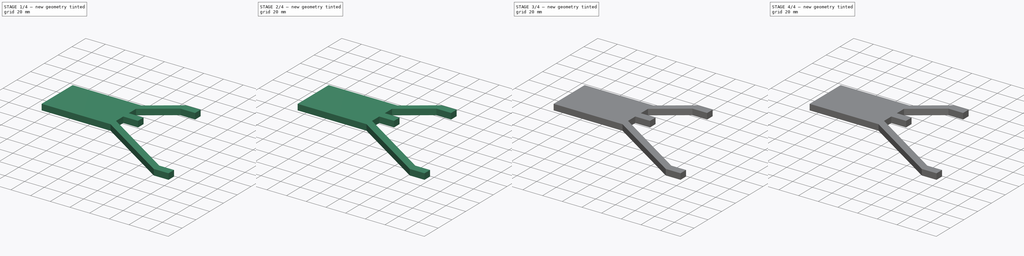
[diagram: build sequence overview — one tinted view per stage of 4, left to right]
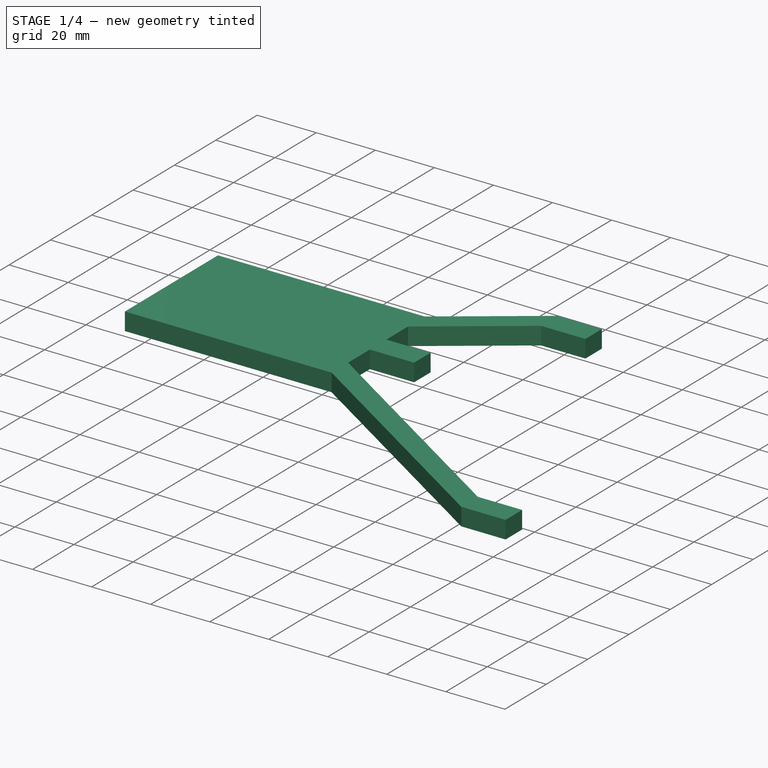
[diagram: stage 1 of 4 — iso view after this stage's code; geometry added in this stage tinted green]
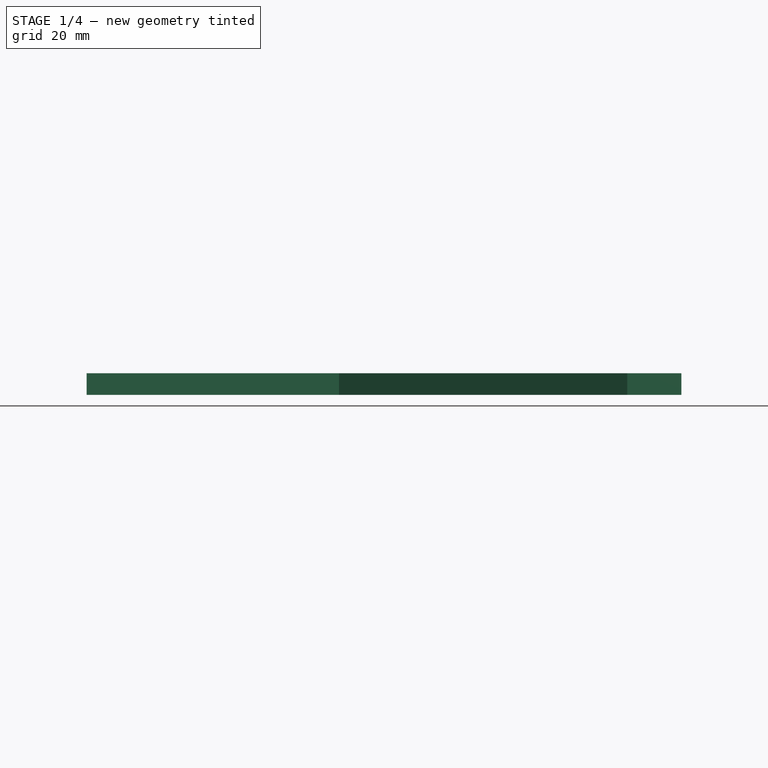
[diagram: stage 1 of 4 — front view after this stage's code; geometry added in this stage tinted green]
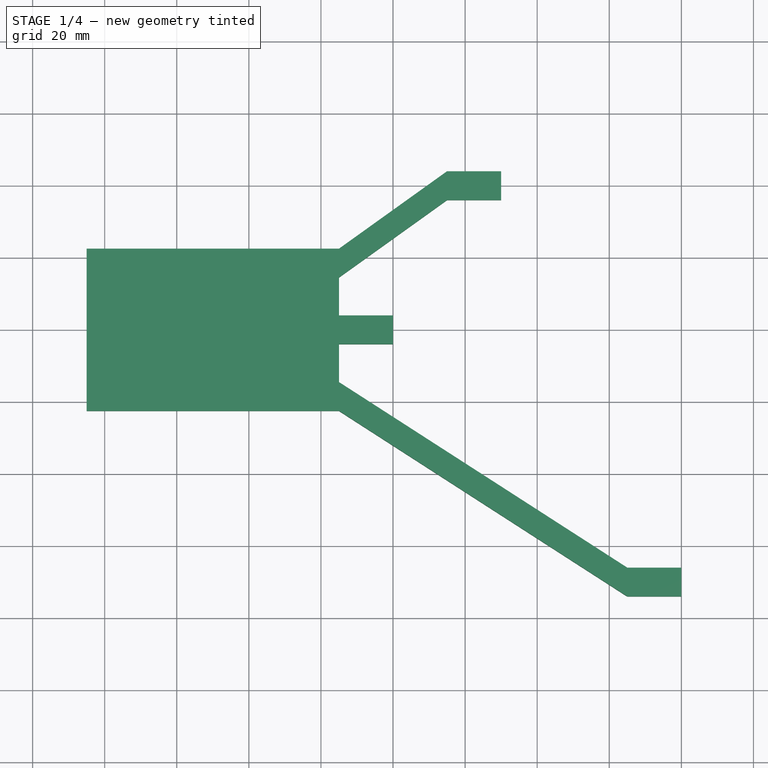
[diagram: stage 1 of 4 — top view after this stage's code; geometry added in this stage tinted green]
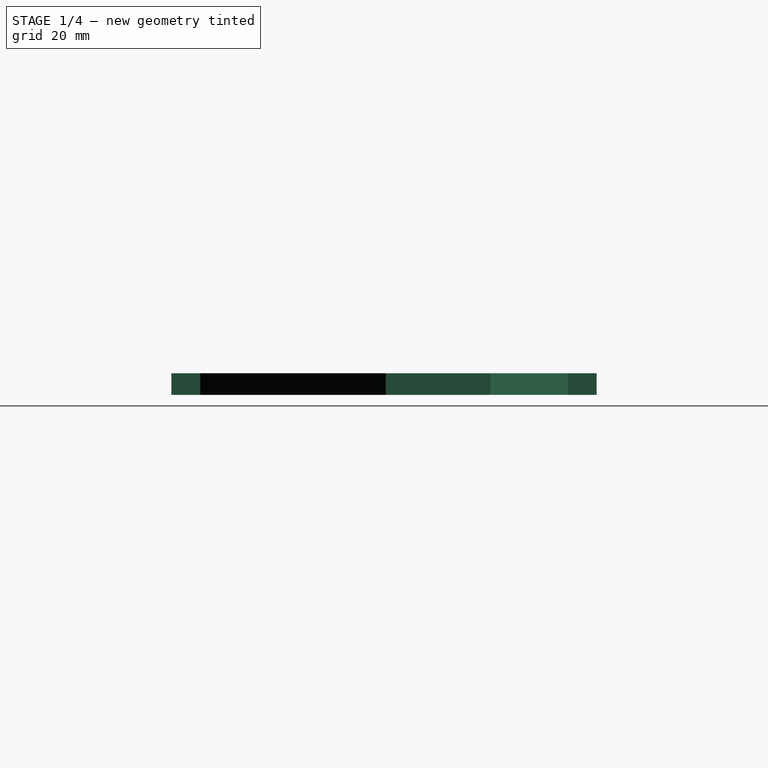
[diagram: stage 1 of 4 — right view after this stage's code; geometry added in this stage tinted green]
FCSTD DOCUMENT  (FreeCAD 0.19R24267 +99 (Git))
Label: Head Tracker
License: All rights reserved
LicenseURL: http://en.wikipedia.org/wiki/All_rights_reserved
objects: Sketcher::SketchObject×13, PartDesign::Pocket×8, PartDesign::Pad×4, PartDesign::Body×3, PartDesign::Thickness×2
note: 44 computed .brp shape members not serialized (recipe doc carries the construction recipe); baked Part::Feature solids carry a one-line shape summary decoded from their .brp

FEATURE [Sketcher::SketchObject] Sketch004
  FullyConstrained = true
  MapMode = 5
  Support = -> [XY_Plane001]
  sketch-geometry (22):
    g0: LineSegment StartX=80 StartY=-74 StartZ=0 EndX=65 EndY=-74 EndZ=0
    g1: LineSegment StartX=65 StartY=-74 StartZ=0 EndX=-15 EndY=-22.5 EndZ=0
    g2: LineSegment StartX=-15 StartY=-22.5 StartZ=0 EndX=-85 EndY=-22.5 EndZ=0
    g3: LineSegment StartX=-85 StartY=-22.5 StartZ=0 EndX=-85 EndY=22.5 EndZ=0
    g4: LineSegment StartX=-85 StartY=22.5 StartZ=0 EndX=-15 EndY=22.5 EndZ=0
    g5: LineSegment StartX=-15 StartY=22.5 StartZ=0 EndX=15 EndY=44 EndZ=0
    g6: LineSegment StartX=15 StartY=44 StartZ=0 EndX=30 EndY=44 EndZ=0
    g7: LineSegment StartX=30 StartY=44 StartZ=0 EndX=30 EndY=36 EndZ=0
    g8: LineSegment StartX=30 StartY=36 StartZ=0 EndX=15 EndY=36 EndZ=0
    g9: LineSegment StartX=15 StartY=36 StartZ=0 EndX=-15 EndY=14.5 EndZ=0
    g10: LineSegment StartX=-15 StartY=14.5 StartZ=0 EndX=-15 EndY=4 EndZ=0
    g11: LineSegment StartX=-15 StartY=4 StartZ=0 EndX=0 EndY=4 EndZ=0
    g12: LineSegment StartX=0 StartY=4 StartZ=0 EndX=0 EndY=-4 EndZ=0
    g13: LineSegment StartX=0 StartY=-4 StartZ=0 EndX=-15 EndY=-4 EndZ=0
    g14: LineSegment StartX=-15 StartY=-4 StartZ=0 EndX=-15 EndY=-14.5 EndZ=0
    g15: LineSegment StartX=-15 StartY=-14.5 StartZ=0 EndX=65 EndY=-66 EndZ=0
    g16: LineSegment StartX=65 StartY=-66 StartZ=0 EndX=80 EndY=-66 EndZ=0
    g17: LineSegment StartX=80 StartY=-66 StartZ=0 EndX=80 EndY=-74 EndZ=0
    g18: GeomPoint X=30 Y=40 Z=0
    g19: GeomPoint X=0 Y=0 Z=0
    g20: GeomPoint X=80 Y=-70 Z=0
    g21: GeomPoint X=-15 Y=-2e-16 Z=0
  constraints (56):
    c: Horizontal(g0)
    c: Coincident(g0,g1)
    c: Coincident(g1,g2)
    c: Horizontal(g2)
    c: Coincident(g2,g3)
    c: Vertical(g3)
    c: Coincident(g3,g4)
    c: Horizontal(g4)
    c: Coincident(g4,g5)
    c: Coincident(g5,g6)
    c: Horizontal(g6)
    c: Coincident(g6,g7)
    c: Vertical(g7)
    c: Coincident(g7,g8)
    c: Coincident(g8,g9)
    c: Coincident(g9,g10)
    c: Vertical(g10)
    c: Coincident(g10,g11)
    c: Horizontal(g11)
    c: Coincident(g11,g12)
    c: Vertical(g12)
    c: Coincident(g12,g13)
    c: Horizontal(g13)
    c: Coincident(g13,g14)
    c: Coincident(g14,g15)
    c: Coincident(g15,g16)
    c: Coincident(g16,g17)
    c: Coincident(g17,g0)
    c: Horizontal(g8)
    c: Horizontal(g16)
    c: Vertical(g17)
    c: DistanceY(g7,g7) = 8
    c: DistanceY(g17,g17) = 8
    c: DistanceY(g12,g12) = 8
    c: Vertical(g15,g0)
    c: Vertical(g8,g5)
    c: Symmetric(g6,g7,g18)
    c: Symmetric(g11,g12,g19)
    c: Symmetric(g16,g0,g20)
    c: DistanceY(g19,g18) = 40
    c: DistanceX(g19,g18) = 30
    c: DistanceY(g20,g19) = 70
    c: DistanceX(g19,g20) = 80
    c: Vertical(g4,g1)
    c: Symmetric(g10,g13,g21)
    c: Symmetric(g9,g14,g21)
    c: Vertical(g10,g13)
    c: Vertical(g4,g9)
    c: DistanceY(g9,g4) = 8
    c: DistanceY(g1,g14) = 8
    c: DistanceX(g6,g6) = 15
    c: Equal(g8,g13)
    c: Equal(g13,g16)
    c: Coincident(g19,g-1)
    c: DistanceX(g4,g4) = 70
    c: DistanceY(g3,g3) = 45
FEATURE [PartDesign::Pad] Pad001
  Direction = (1,1,1)
  Length = 6
  Length2 = 100
  Profile = -> Sketch004
  Refine = true
  Type = 0
FEATURE [PartDesign::Body] Body
  Group = -> [Sketch,Pad,Thickness,Sketch001,Pocket,Sketch002,Pocket001,Sketch003,Pocket002,Sketch009,Pad002]
  Origin = -> Origin
  Tip = -> Pad002
FEATURE [Sketcher::SketchObject] Sketch010
  FullyConstrained = true
  MapMode = 5
  Placement = pos=(0,0,0) rot=(1,0,0;3.14159rad)
  Support = -> [Pad001]
FEATURE [PartDesign::Thickness] Thickness001
  Base = -> Pad001 [Face19]
  BaseFeature = -> Pad001
  Intersection = false
  Join = 1
  Mode = 0
  Refine = true
  Reversed = true
  SupportTransform = false
  Value = 1.2
FEATURE [Sketcher::SketchObject] Sketch011
  ExternalGeometry = -> [Thickness001]
  FullyConstrained = true
  MapMode = 5
  Placement = pos=(0,0,6) rot=(0,0,1;0rad)
  Support = -> [Thickness001]
  sketch-geometry (4):
    g0: Circle CenterX=-82.3 CenterY=19.8 CenterZ=0 NormalX=0 NormalY=0 NormalZ=1 AngleXU=0 Radius=1.5
    g1: Circle CenterX=-82.3 CenterY=-19.8 CenterZ=0 NormalX=0 NormalY=0 NormalZ=1 AngleXU=0 Radius=1.5
    g2: Circle CenterX=-17.7 CenterY=11.8 CenterZ=0 NormalX=0 NormalY=0 NormalZ=1 AngleXU=0 Radius=1.5
    g3: Circle CenterX=-17.7 CenterY=-11.8 CenterZ=0 NormalX=0 NormalY=0 NormalZ=1 AngleXU=0 Radius=1.5
  constraints (12):
    c: Diameter(g0) = 3
    c: Equal(g0,g1)
    c: Equal(g1,g2)
    c: Equal(g2,g3)
    c: DistanceX(g-5,g0) = 2.7
    c: DistanceX(g-5,g1) = 2.7
    c: DistanceX(g3,g-4) = 2.7
    c: DistanceX(g2,g-3) = 2.7
    c: DistanceY(g0,g-5) = 2.7
    c: DistanceY(g-5,g1) = 2.7
    c: DistanceY(g-4,g3) = 2.7
    c: DistanceY(g2,g-3) = 2.7
FEATURE [PartDesign::Pocket] Pocket003
  BaseFeature = -> Thickness001
  Length = 5
  Length2 = 100
  Profile = -> Sketch011
  Refine = true
  Type = 2
FEATURE [PartDesign::Body] Body001
  Group = -> [Sketch004,Pad001,Sketch010,Thickness001,Sketch011,Pocket003,Sketch012,Pocket004,Sketch013,Pocket005,Sketch014,Pocket006,Sketch015,Pocket007]
  Origin = -> Origin001
  Placement = pos=(0,-1.8e-14,11) rot=(0,0,1;0rad)
  Tip = -> Pocket007
FEATURE [Sketcher::SketchObject] Sketch017
  FullyConstrained = true
  MapMode = 5
  Support = -> [XY_Plane002]
  sketch-geometry (22):
    g0: LineSegment StartX=80 StartY=-74 StartZ=0 EndX=65 EndY=-74 EndZ=0
    g1: LineSegment StartX=65 StartY=-74 StartZ=0 EndX=-15 EndY=-22.5 EndZ=0
    g2: LineSegment StartX=-15 StartY=-22.5 StartZ=0 EndX=-85 EndY=-22.5 EndZ=0
    g3: LineSegment StartX=-85 StartY=-22.5 StartZ=0 EndX=-85 EndY=22.5 EndZ=0
    g4: LineSegment StartX=-85 StartY=22.5 StartZ=0 EndX=-15 EndY=22.5 EndZ=0
    g5: LineSegment StartX=-15 StartY=22.5 StartZ=0 EndX=15 EndY=44 EndZ=0
    g6: LineSegment StartX=15 StartY=44 StartZ=0 EndX=30 EndY=44 EndZ=0
    g7: LineSegment StartX=30 StartY=44 StartZ=0 EndX=30 EndY=36 EndZ=0
    g8: LineSegment StartX=30 StartY=36 StartZ=0 EndX=15 EndY=36 EndZ=0
    g9: LineSegment StartX=15 StartY=36 StartZ=0 EndX=-15 EndY=14.5 EndZ=0
    g10: LineSegment StartX=-15 StartY=14.5 StartZ=0 EndX=-15 EndY=4 EndZ=0
    g11: LineSegment StartX=-15 StartY=4 StartZ=0 EndX=0 EndY=4 EndZ=0
    g12: LineSegment StartX=0 StartY=4 StartZ=0 EndX=0 EndY=-4 EndZ=0
    g13: LineSegment StartX=0 StartY=-4 StartZ=0 EndX=-15 EndY=-4 EndZ=0
    g14: LineSegment StartX=-15 StartY=-4 StartZ=0 EndX=-15 EndY=-14.5 EndZ=0
    g15: LineSegment StartX=-15 StartY=-14.5 StartZ=0 EndX=65 EndY=-66 EndZ=0
    g16: LineSegment StartX=65 StartY=-66 StartZ=0 EndX=80 EndY=-66 EndZ=0
    g17: LineSegment StartX=80 StartY=-66 StartZ=0 EndX=80 EndY=-74 EndZ=0
    g18: GeomPoint X=30 Y=40 Z=0
    g19: GeomPoint X=0 Y=0 Z=0
    g20: GeomPoint X=80 Y=-70 Z=0
    g21: GeomPoint X=-15 Y=-2e-16 Z=0
  constraints (56):
    c: Horizontal(g0)
    c: Coincident(g0,g1)
    c: Coincident(g1,g2)
    c: Horizontal(g2)
    c: Coincident(g2,g3)
    c: Vertical(g3)
    c: Coincident(g3,g4)
    c: Horizontal(g4)
    c: Coincident(g4,g5)
    c: Coincident(g5,g6)
    c: Horizontal(g6)
    c: Coincident(g6,g7)
    c: Vertical(g7)
    c: Coincident(g7,g8)
    c: Coincident(g8,g9)
    c: Coincident(g9,g10)
    c: Vertical(g10)
    c: Coincident(g10,g11)
    c: Horizontal(g11)
    c: Coincident(g11,g12)
    c: Vertical(g12)
    c: Coincident(g12,g13)
    c: Horizontal(g13)
    c: Coincident(g13,g14)
    c: Coincident(g14,g15)
    c: Coincident(g15,g16)
    c: Coincident(g16,g17)
    c: Coincident(g17,g0)
    c: Horizontal(g8)
    c: Horizontal(g16)
    c: Vertical(g17)
    c: DistanceY(g7,g7) = 8
    c: DistanceY(g17,g17) = 8
    c: DistanceY(g12,g12) = 8
    c: Vertical(g15,g0)
    c: Vertical(g8,g5)
    c: Symmetric(g6,g7,g18)
    c: Symmetric(g11,g12,g19)
    c: Symmetric(g16,g0,g20)
    c: DistanceY(g19,g18) = 40
    c: DistanceX(g19,g18) = 30
    c: DistanceY(g20,g19) = 70
    c: DistanceX(g19,g20) = 80
    c: Vertical(g4,g1)
    c: Symmetric(g10,g13,g21)
    c: Symmetric(g9,g14,g21)
    c: Vertical(g10,g13)
    c: Vertical(g4,g9)
    c: DistanceY(g9,g4) = 8
    c: DistanceY(g1,g14) = 8
    c: DistanceX(g6,g6) = 15
    c: Equal(g8,g13)
    c: Equal(g13,g16)
    c: Coincident(g19,g-1)
    c: DistanceX(g4,g4) = 70
    c: DistanceY(g3,g3) = 45
FEATURE [PartDesign::Pad] Pad004
  Direction = (1,1,1)
  Length = 6
  Length2 = 100
  Profile = -> Sketch017
  Refine = true
  Type = 0
FEATURE [PartDesign::Body] Body002
  Group = -> [Sketch017,Pad004]
  Origin = -> Origin002
  Tip = -> Pad004
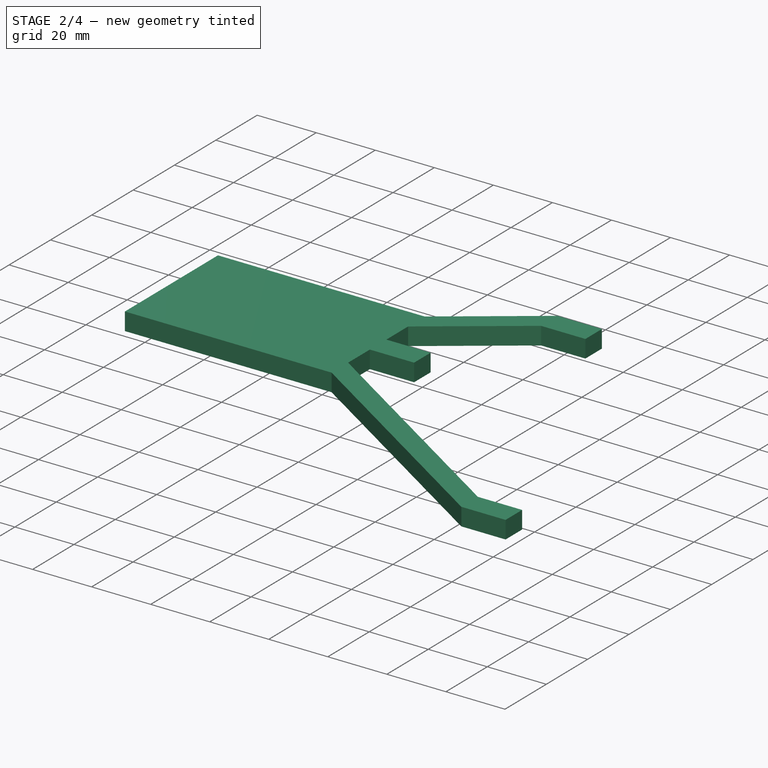
[diagram: stage 2 of 4 — iso view after this stage's code; geometry added in this stage tinted green]
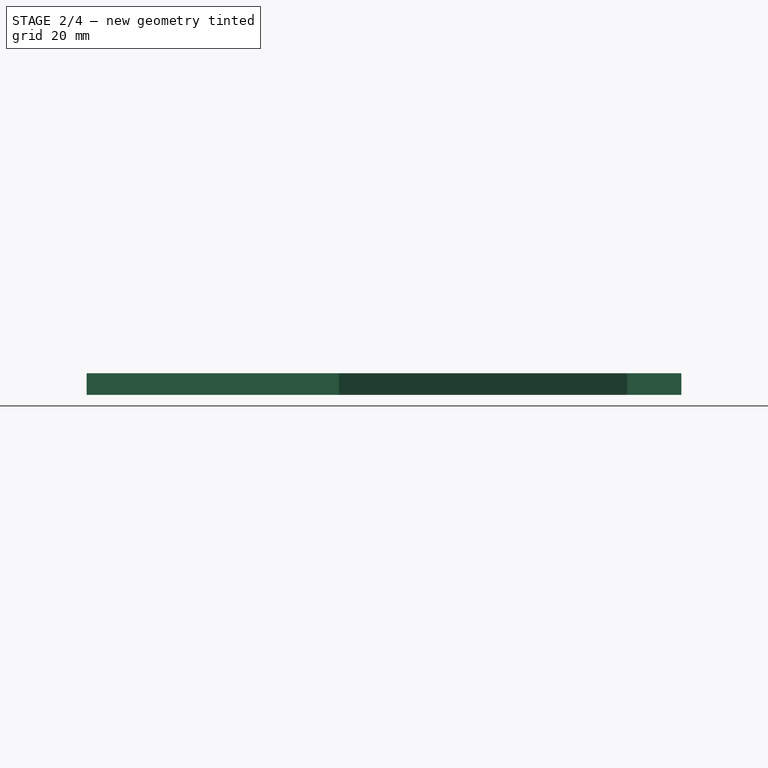
[diagram: stage 2 of 4 — front view after this stage's code; geometry added in this stage tinted green]
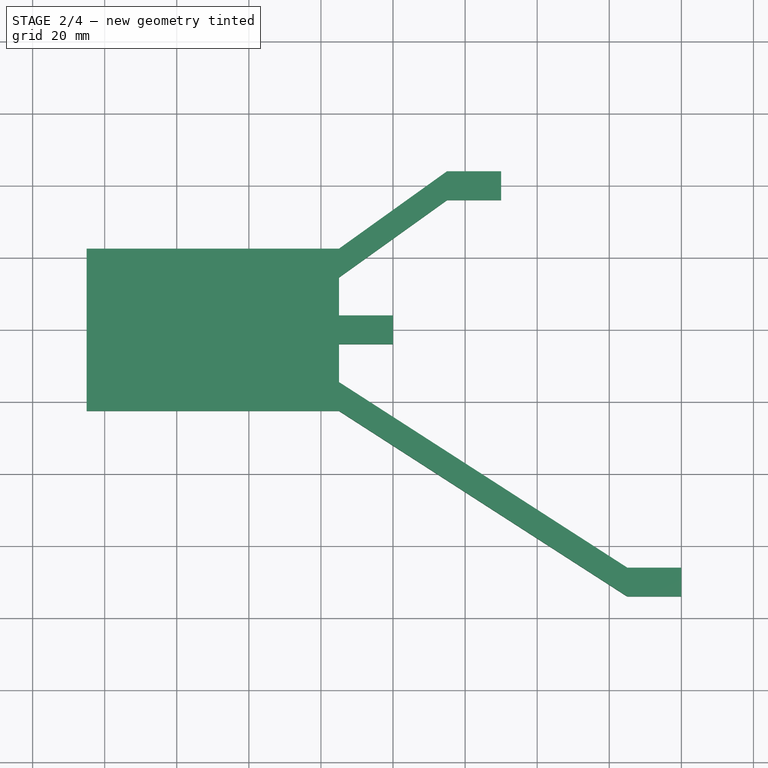
[diagram: stage 2 of 4 — top view after this stage's code; geometry added in this stage tinted green]
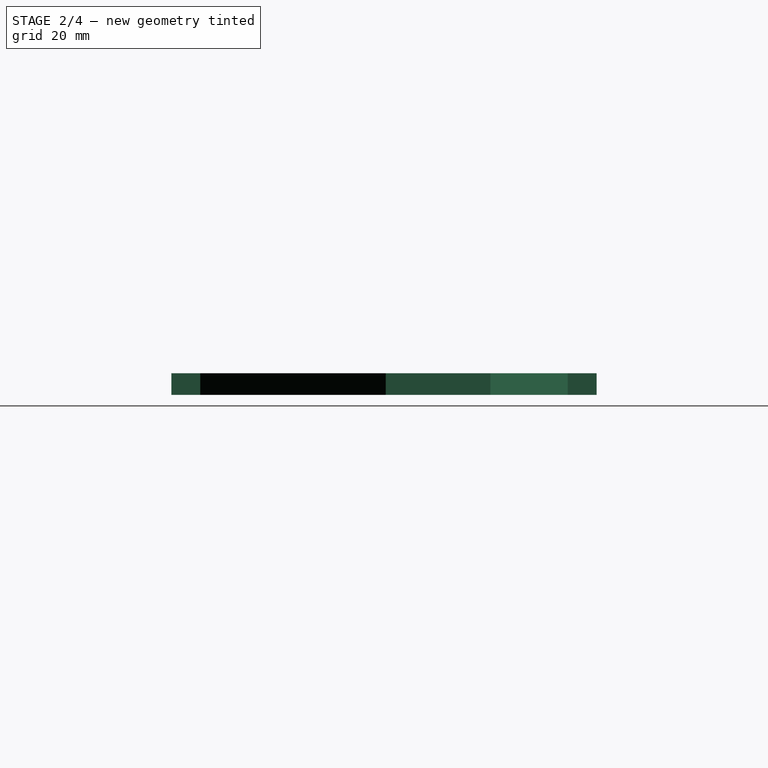
[diagram: stage 2 of 4 — right view after this stage's code; geometry added in this stage tinted green]
FEATURE [Sketcher::SketchObject] Sketch012
  ExternalGeometry = -> [Pocket003]
  FullyConstrained = true
  MapMode = 5
  Placement = pos=(0,0,6) rot=(0,0,1;0rad)
  Support = -> [Pocket003]
  sketch-geometry (4):
    g0: LineSegment StartX=-70 StartY=-7.5 StartZ=0 EndX=-55 EndY=-7.5 EndZ=0
    g1: LineSegment StartX=-55 StartY=-7.5 StartZ=0 EndX=-55 EndY=-22.5 EndZ=0
    g2: LineSegment StartX=-55 StartY=-22.5 StartZ=0 EndX=-70 EndY=-22.5 EndZ=0
    g3: LineSegment StartX=-70 StartY=-22.5 StartZ=0 EndX=-70 EndY=-7.5 EndZ=0
  constraints (12):
    c: Coincident(g0,g1)
    c: Coincident(g1,g2)
    c: Coincident(g2,g3)
    c: Coincident(g3,g0)
    c: Horizontal(g0)
    c: Horizontal(g2)
    c: Vertical(g1)
    c: Vertical(g3)
    c: DistanceX(g0,g0) = 15
    c: DistanceY(g1,g1) = 15
    c: Horizontal(g-3,g2)
    c: DistanceX(g-3,g2) = 15
FEATURE [PartDesign::Pocket] Pocket004
  BaseFeature = -> Pocket003
  Length = 5
  Length2 = 100
  Profile = -> Sketch012
  Refine = true
  Type = 1
FEATURE [Sketcher::SketchObject] Sketch013
  ExternalGeometry = -> [Pocket004]
  FullyConstrained = true
  MapMode = 5
  Placement = pos=(30,0,0) rot=(0.57735,0.57735,0.57735;2.0944rad)
  Support = -> [Pocket004]
  sketch-geometry (1):
    g0: Circle CenterX=40 CenterY=0 CenterZ=0 NormalX=0 NormalY=0 NormalZ=1 AngleXU=0 Radius=2.6
  constraints (2):
    c: Symmetric(g-3,g-4,g0)
    c: Diameter(g0) = 5.2
FEATURE [PartDesign::Pocket] Pocket005
  BaseFeature = -> Pocket004
  Length = 5
  Length2 = 100
  Profile = -> Sketch013
  Refine = true
  Type = 2
FEATURE [Sketcher::SketchObject] Sketch014
  ExternalGeometry = -> [Pocket005]
  FullyConstrained = true
  MapMode = 5
  Placement = pos=(0,0,0) rot=(0.57735,0.57735,0.57735;2.0944rad)
  Support = -> [Pocket005]
  sketch-geometry (1):
    g0: Circle CenterX=0 CenterY=0 CenterZ=0 NormalX=0 NormalY=0 NormalZ=1 AngleXU=0 Radius=2.6
  constraints (2):
    c: Symmetric(g-3,g-4,g0)
    c: Diameter(g0) = 5.2
FEATURE [PartDesign::Pocket] Pocket006
  BaseFeature = -> Pocket005
  Length = 5
  Length2 = 100
  Profile = -> Sketch014
  Refine = true
  Type = 2
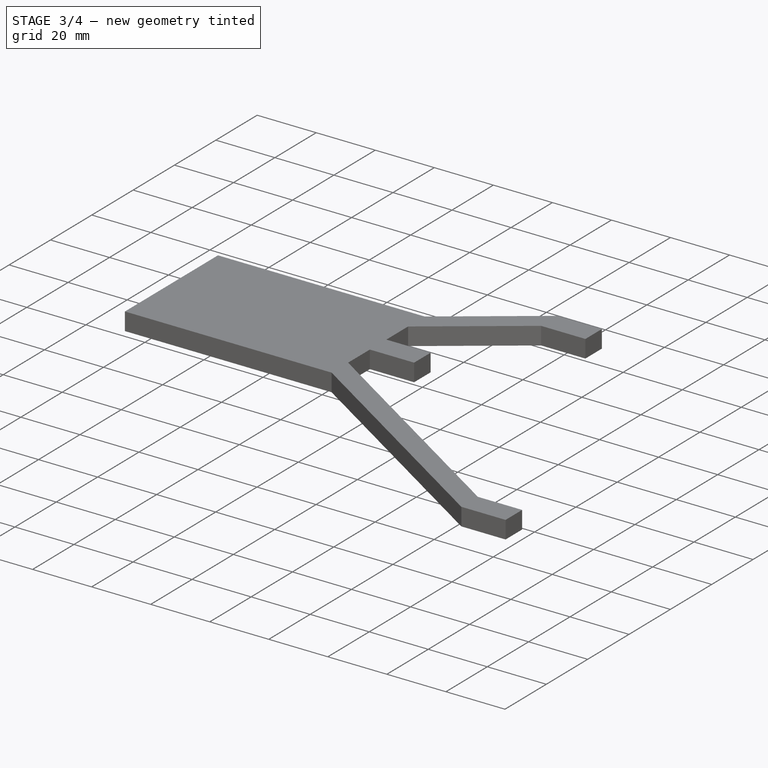
[diagram: stage 3 of 4 — iso view after this stage's code; geometry added in this stage tinted green]
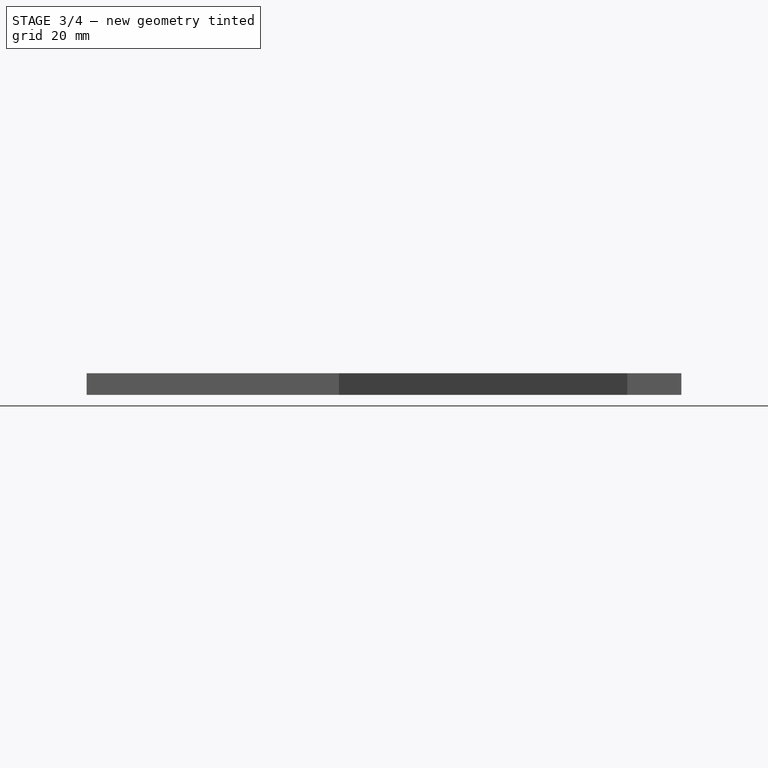
[diagram: stage 3 of 4 — front view after this stage's code; geometry added in this stage tinted green]
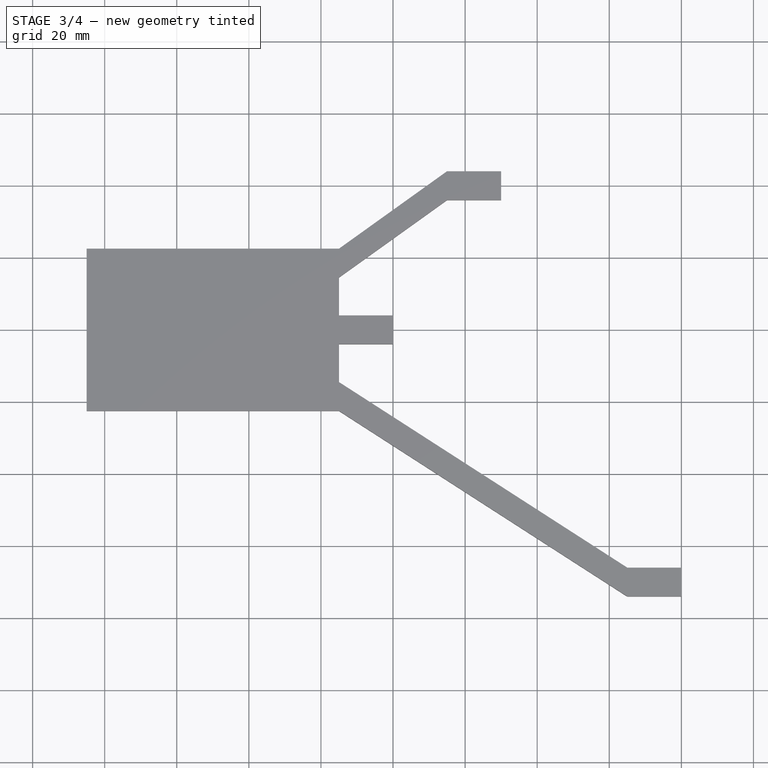
[diagram: stage 3 of 4 — top view after this stage's code; geometry added in this stage tinted green]
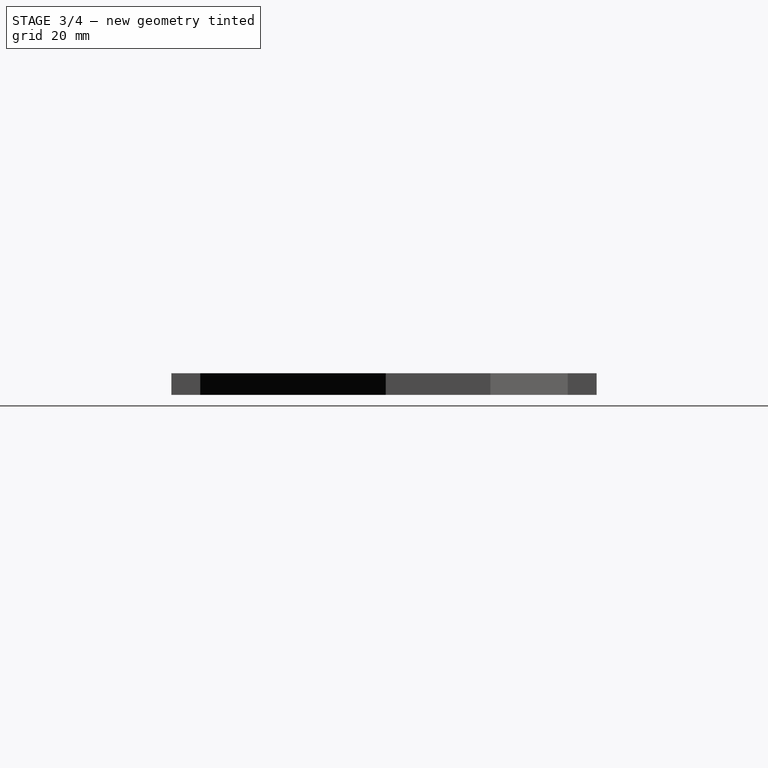
[diagram: stage 3 of 4 — right view after this stage's code; geometry added in this stage tinted green]
FEATURE [Sketcher::SketchObject] Sketch
  FullyConstrained = true
  MapMode = 5
  Support = -> [XY_Plane]
  sketch-geometry (22):
    g0: LineSegment StartX=80 StartY=-74 StartZ=0 EndX=65 EndY=-74 EndZ=0
    g1: LineSegment StartX=65 StartY=-74 StartZ=0 EndX=-15 EndY=-22.5 EndZ=0
    g2: LineSegment StartX=-15 StartY=-22.5 StartZ=0 EndX=-85 EndY=-22.5 EndZ=0
    g3: LineSegment StartX=-85 StartY=-22.5 StartZ=0 EndX=-85 EndY=22.5 EndZ=0
    g4: LineSegment StartX=-85 StartY=22.5 StartZ=0 EndX=-15 EndY=22.5 EndZ=0
    g5: LineSegment StartX=-15 StartY=22.5 StartZ=0 EndX=15 EndY=44 EndZ=0
    g6: LineSegment StartX=15 StartY=44 StartZ=0 EndX=30 EndY=44 EndZ=0
    g7: LineSegment StartX=30 StartY=44 StartZ=0 EndX=30 EndY=36 EndZ=0
    g8: LineSegment StartX=30 StartY=36 StartZ=0 EndX=15 EndY=36 EndZ=0
    g9: LineSegment StartX=15 StartY=36 StartZ=0 EndX=-15 EndY=14.5 EndZ=0
    g10: LineSegment StartX=-15 StartY=14.5 StartZ=0 EndX=-15 EndY=4 EndZ=0
    g11: LineSegment StartX=-15 StartY=4 StartZ=0 EndX=0 EndY=4 EndZ=0
    g12: LineSegment StartX=0 StartY=4 StartZ=0 EndX=0 EndY=-4 EndZ=0
    g13: LineSegment StartX=0 StartY=-4 StartZ=0 EndX=-15 EndY=-4 EndZ=0
    g14: LineSegment StartX=-15 StartY=-4 StartZ=0 EndX=-15 EndY=-14.5 EndZ=0
    g15: LineSegment StartX=-15 StartY=-14.5 StartZ=0 EndX=65 EndY=-66 EndZ=0
    g16: LineSegment StartX=65 StartY=-66 StartZ=0 EndX=80 EndY=-66 EndZ=0
    g17: LineSegment StartX=80 StartY=-66 StartZ=0 EndX=80 EndY=-74 EndZ=0
    g18: GeomPoint X=30 Y=40 Z=0
    g19: GeomPoint X=0 Y=0 Z=0
    g20: GeomPoint X=80 Y=-70 Z=0
    g21: GeomPoint X=-15 Y=-2e-16 Z=0
  constraints (56):
    c: Horizontal(g0)
    c: Coincident(g0,g1)
    c: Coincident(g1,g2)
    c: Horizontal(g2)
    c: Coincident(g2,g3)
    c: Vertical(g3)
    c: Coincident(g3,g4)
    c: Horizontal(g4)
    c: Coincident(g4,g5)
    c: Coincident(g5,g6)
    c: Horizontal(g6)
    c: Coincident(g6,g7)
    c: Vertical(g7)
    c: Coincident(g7,g8)
    c: Coincident(g8,g9)
    c: Coincident(g9,g10)
    c: Vertical(g10)
    c: Coincident(g10,g11)
    c: Horizontal(g11)
    c: Coincident(g11,g12)
    c: Vertical(g12)
    c: Coincident(g12,g13)
    c: Horizontal(g13)
    c: Coincident(g13,g14)
    c: Coincident(g14,g15)
    c: Coincident(g15,g16)
    c: Coincident(g16,g17)
    c: Coincident(g17,g0)
    c: Horizontal(g8)
    c: Horizontal(g16)
    c: Vertical(g17)
    c: DistanceY(g7,g7) = 8
    c: DistanceY(g17,g17) = 8
    c: DistanceY(g12,g12) = 8
    c: Vertical(g15,g0)
    c: Vertical(g8,g5)
    c: Symmetric(g6,g7,g18)
    c: Symmetric(g11,g12,g19)
    c: Symmetric(g16,g0,g20)
    c: DistanceY(g19,g18) = 40
    c: DistanceX(g19,g18) = 30
    c: DistanceY(g20,g19) = 70
    c: DistanceX(g19,g20) = 80
    c: Vertical(g4,g1)
    c: Symmetric(g10,g13,g21)
    c: Symmetric(g9,g14,g21)
    c: Vertical(g10,g13)
    c: Vertical(g4,g9)
    c: DistanceY(g9,g4) = 8
    c: DistanceY(g1,g14) = 8
    c: DistanceX(g6,g6) = 15
    c: Equal(g8,g13)
    c: Equal(g13,g16)
    c: Coincident(g19,g-1)
    c: DistanceX(g4,g4) = 70
    c: DistanceY(g3,g3) = 45
FEATURE [PartDesign::Pad] Pad
  Direction = (1,1,1)
  Length = 6
  Length2 = 100
  Profile = -> Sketch
  Refine = true
  Type = 0
FEATURE [PartDesign::Thickness] Thickness
  Base = -> Pad [Face20]
  BaseFeature = -> Pad
  Intersection = false
  Join = 1
  Mode = 0
  Refine = true
  Reversed = true
  SupportTransform = false
  Value = 1.2
FEATURE [Sketcher::SketchObject] Sketch015
  ExternalGeometry = -> [Pocket006]
  FullyConstrained = true
  MapMode = 5
  Placement = pos=(80,0,0) rot=(0.57735,0.57735,0.57735;2.0944rad)
  Support = -> [Pocket006]
  sketch-geometry (1):
    g0: Circle CenterX=-70 CenterY=0 CenterZ=0 NormalX=0 NormalY=0 NormalZ=1 AngleXU=0 Radius=2.6
  constraints (2):
    c: Symmetric(g-3,g-4,g0)
    c: Diameter(g0) = 5.2
FEATURE [PartDesign::Pocket] Pocket007
  BaseFeature = -> Pocket006
  Length = 5
  Length2 = 100
  Profile = -> Sketch015
  Refine = true
  Type = 2
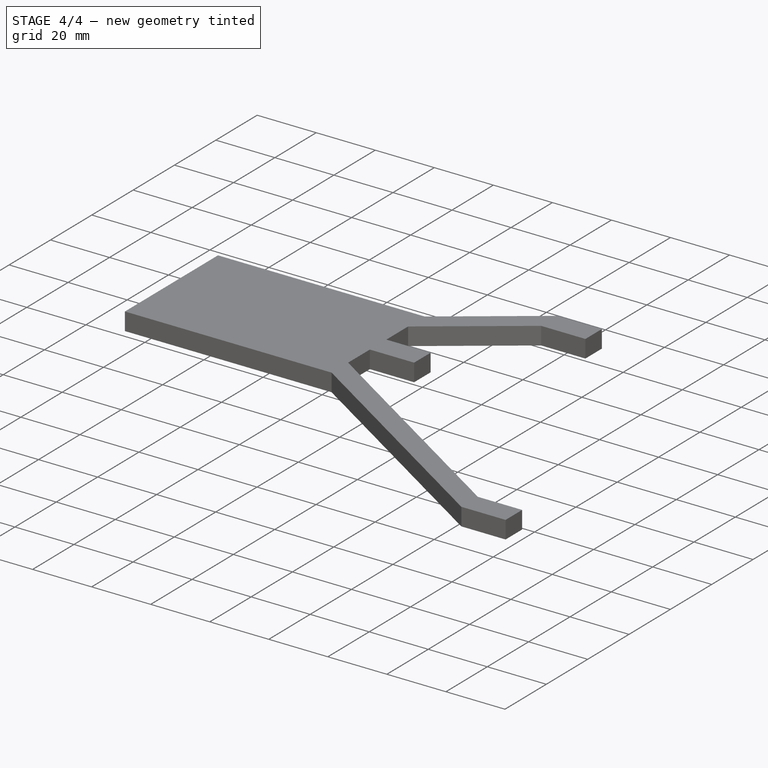
[diagram: stage 4 of 4 — iso view after this stage's code; geometry added in this stage tinted green]
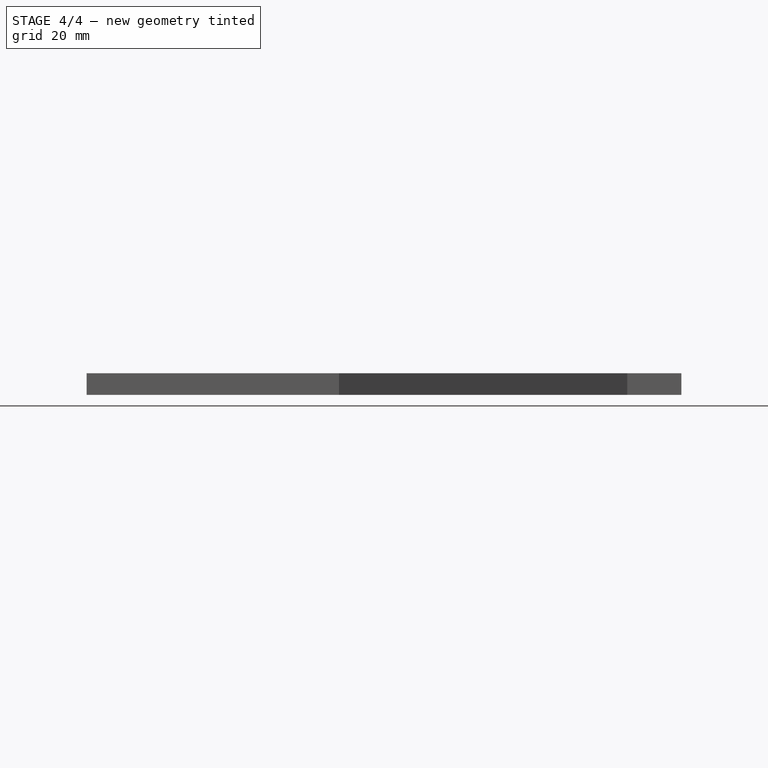
[diagram: stage 4 of 4 — front view after this stage's code; geometry added in this stage tinted green]
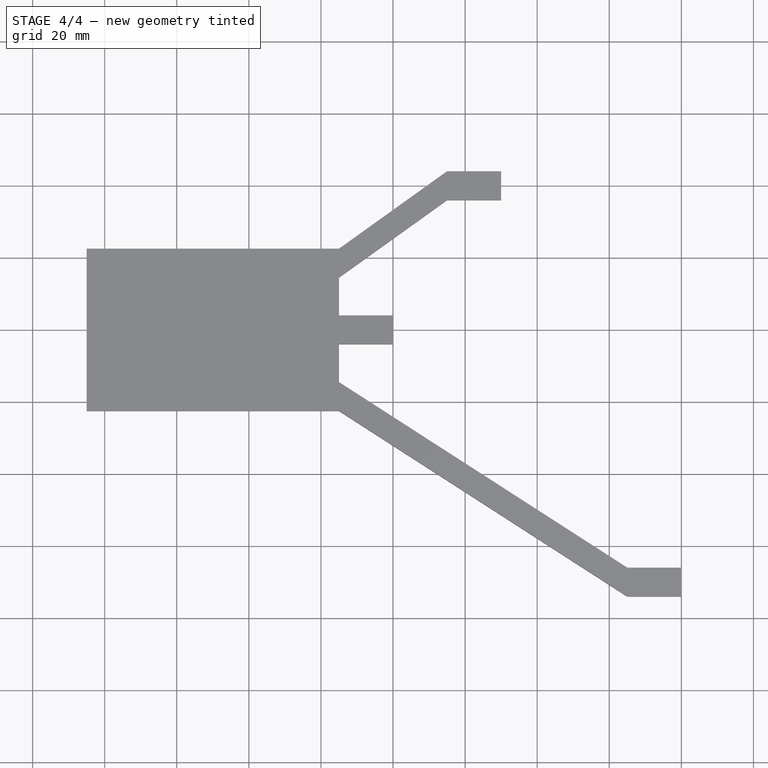
[diagram: stage 4 of 4 — top view after this stage's code; geometry added in this stage tinted green]
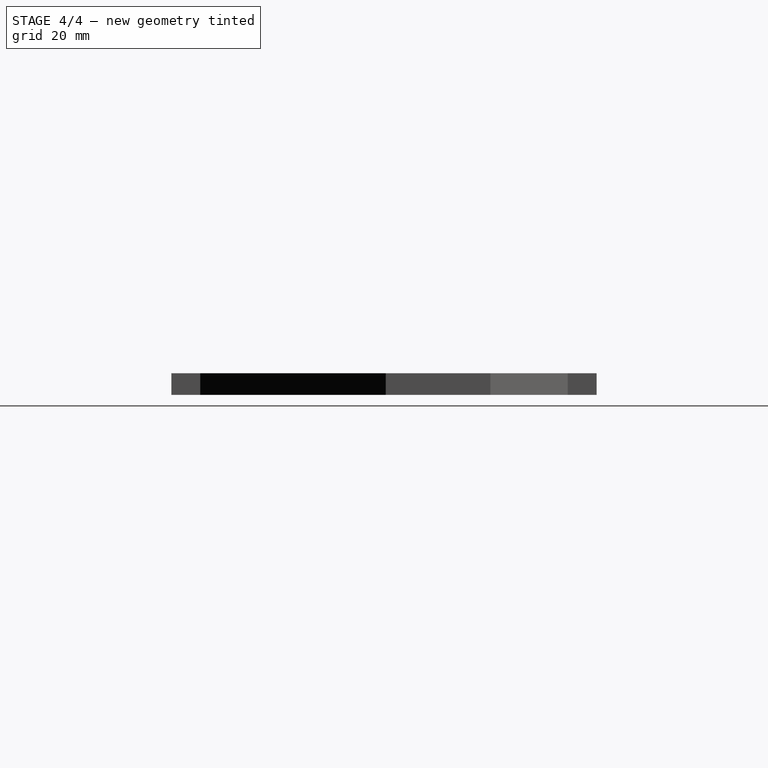
[diagram: stage 4 of 4 — right view after this stage's code; geometry added in this stage tinted green]
FEATURE [Sketcher::SketchObject] Sketch001
  ExternalGeometry = -> [Thickness]
  FullyConstrained = true
  MapMode = 5
  Placement = pos=(0,0,0) rot=(0.57735,0.57735,0.57735;2.0944rad)
  Support = -> [Thickness]
  sketch-geometry (1):
    g0: Circle CenterX=-2e-16 CenterY=6 CenterZ=0 NormalX=0 NormalY=0 NormalZ=1 AngleXU=0 Radius=2.6
  constraints (2):
    c: Symmetric(g-3,g-4,g0)
    c: Diameter(g0) = 5.2
FEATURE [PartDesign::Pocket] Pocket
  BaseFeature = -> Thickness
  Length = 5
  Length2 = 100
  Profile = -> Sketch001
  Refine = true
  Type = 2
FEATURE [Sketcher::SketchObject] Sketch002
  ExternalGeometry = -> [Pocket]
  FullyConstrained = true
  MapMode = 5
  Placement = pos=(30,0,0) rot=(0.57735,0.57735,0.57735;2.0944rad)
  Support = -> [Pocket]
  sketch-geometry (1):
    g0: Circle CenterX=40 CenterY=6 CenterZ=0 NormalX=0 NormalY=0 NormalZ=1 AngleXU=0 Radius=2.6
  constraints (2):
    c: Symmetric(g-3,g-4,g0)
    c: Diameter(g0) = 5.2
FEATURE [PartDesign::Pocket] Pocket001
  BaseFeature = -> Pocket
  Length = 5
  Length2 = 100
  Profile = -> Sketch002
  Refine = true
  Type = 2
FEATURE [Sketcher::SketchObject] Sketch003
  ExternalGeometry = -> [Pocket001]
  FullyConstrained = true
  MapMode = 5
  Placement = pos=(80,0,0) rot=(0.57735,0.57735,0.57735;2.0944rad)
  Support = -> [Pocket001]
  sketch-geometry (1):
    g0: Circle CenterX=-70 CenterY=6 CenterZ=0 NormalX=0 NormalY=0 NormalZ=1 AngleXU=0 Radius=2.6
  constraints (2):
    c: Symmetric(g-3,g-4,g0)
    c: Diameter(g0) = 5.2
FEATURE [PartDesign::Pocket] Pocket002
  BaseFeature = -> Pocket001
  Length = 5
  Length2 = 100
  Profile = -> Sketch003
  Refine = true
  Type = 2
FEATURE [Sketcher::SketchObject] Sketch009
  ExternalGeometry = -> [Pocket002]
  FullyConstrained = true
  MapMode = 5
  Placement = pos=(0,0,1.2) rot=(0,0,1;0rad)
  Support = -> [Pocket002]
  sketch-geometry (20):
    g0: LineSegment StartX=-83.8 StartY=21.3 StartZ=0 EndX=-79.6 EndY=21.3 EndZ=0
    g1: LineSegment StartX=-79.6 StartY=21.3 StartZ=0 EndX=-79.6 EndY=17.1 EndZ=0
    g2: LineSegment StartX=-79.6 StartY=17.1 StartZ=0 EndX=-83.8 EndY=17.1 EndZ=0
    g3: LineSegment StartX=-83.8 StartY=17.1 StartZ=0 EndX=-83.8 EndY=21.3 EndZ=0
    g4: Circle CenterX=-82.3 CenterY=19.8 CenterZ=0 NormalX=0 NormalY=0 NormalZ=1 AngleXU=0 Radius=1.5
    g5: LineSegment StartX=-16.2 StartY=14.5 StartZ=0 EndX=-20.5 EndY=14.5 EndZ=0
    g6: LineSegment StartX=-20.5 StartY=14.5 StartZ=0 EndX=-20.5 EndY=9.1 EndZ=0
    g7: LineSegment StartX=-20.5 StartY=9.1 StartZ=0 EndX=-16.2 EndY=9.1 EndZ=0
    g8: LineSegment StartX=-16.2 StartY=9.1 StartZ=0 EndX=-16.2 EndY=14.5 EndZ=0
    g9: LineSegment StartX=-16.2 StartY=-14.5 StartZ=0 EndX=-20.5 EndY=-14.5 EndZ=0
    g10: LineSegment StartX=-20.5 StartY=-14.5 StartZ=0 EndX=-20.5 EndY=-9.1 EndZ=0
    g11: LineSegment StartX=-20.5 StartY=-9.1 StartZ=0 EndX=-16.2 EndY=-9.1 EndZ=0
    g12: LineSegment StartX=-16.2 StartY=-9.1 StartZ=0 EndX=-16.2 EndY=-14.5 EndZ=0
    g13: LineSegment StartX=-83.8 StartY=-21.3 StartZ=0 EndX=-79.6 EndY=-21.3 EndZ=0
    g14: LineSegment StartX=-79.6 StartY=-21.3 StartZ=0 EndX=-79.6 EndY=-17.1 EndZ=0
    g15: LineSegment StartX=-79.6 StartY=-17.1 StartZ=0 EndX=-83.8 EndY=-17.1 EndZ=0
    g16: LineSegment StartX=-83.8 StartY=-17.1 StartZ=0 EndX=-83.8 EndY=-21.3 EndZ=0
    g17: Circle CenterX=-82.3 CenterY=-19.8 CenterZ=0 NormalX=0 NormalY=0 NormalZ=1 AngleXU=0 Radius=1.5
    g18: Circle CenterX=-17.7 CenterY=11.8 CenterZ=0 NormalX=0 NormalY=0 NormalZ=1 AngleXU=0 Radius=1.45
    g19: Circle CenterX=-17.7 CenterY=-11.8 CenterZ=0 NormalX=0 NormalY=0 NormalZ=1 AngleXU=0 Radius=1.45
  constraints (58):
    c: Coincident(g0,g1)
    c: Coincident(g1,g2)
    c: Coincident(g2,g3)
    c: Coincident(g3,g0)
    c: Horizontal(g0)
    c: Horizontal(g2)
    c: Vertical(g1)
    c: Vertical(g3)
    c: Coincident(g0,g-3)
    c: DistanceX(g0,g0) = 4.2
    c: DistanceY(g1,g1) = 4.2
    c: DistanceX(g4,g1) = 2.7
    c: DistanceY(g1,g4) = 2.7
    c: Diameter(g4) = 3
    c: Coincident(g5,g6)
    c: Coincident(g6,g7)
    c: Coincident(g7,g8)
    c: Coincident(g8,g5)
    c: Horizontal(g5)
    c: Horizontal(g7)
    c: Vertical(g6)
    c: Vertical(g8)
    c: Coincident(g9,g10)
    c: Coincident(g10,g11)
    c: Coincident(g11,g12)
    c: Coincident(g12,g9)
    c: Horizontal(g9)
    c: Horizontal(g11)
    c: Vertical(g10)
    c: Vertical(g12)
    c: Coincident(g13,g14)
    c: Coincident(g14,g15)
    c: Coincident(g15,g16)
    c: Coincident(g16,g13)
    c: Horizontal(g13)
    c: Horizontal(g15)
    c: Vertical(g14)
    c: Vertical(g16)
    c: Coincident(g13,g-3)
    c: DistanceX(g15,g15) = 4.2
    c: DistanceY(g14,g14) = 4.2
    c: Diameter(g18) = 2.9
    c: Diameter(g19) = 2.9
    c: Diameter(g17) = 3
    c: DistanceX(g17,g14) = 2.7
    c: DistanceY(g17,g14) = 2.7
    c: DistanceY(g-4,g19) = 2.7
    c: DistanceX(g19,g-4) = 2.7
    c: Horizontal(g9,g-4)
    c: DistanceY(g10,g10) = 5.4
    c: DistanceX(g11,g11) = 4.3
    c: DistanceX(g9,g-4) = 1.2
    c: Horizontal(g5,g-5)
    c: DistanceY(g6,g6) = 5.4
    c: DistanceX(g5,g5) = 4.3
    c: DistanceX(g5,g-5) = 1.2
    c: DistanceX(g18,g-5) = 2.7
    c: DistanceY(g18,g-5) = 2.7
FEATURE [PartDesign::Pad] Pad002
  BaseFeature = -> Pocket002
  Direction = (1,1,1)
  Length = 10
  Length2 = 100
  Profile = -> Sketch009
  Refine = true
  Type = 3
  UpToFace = -> Pocket002 [Face5]
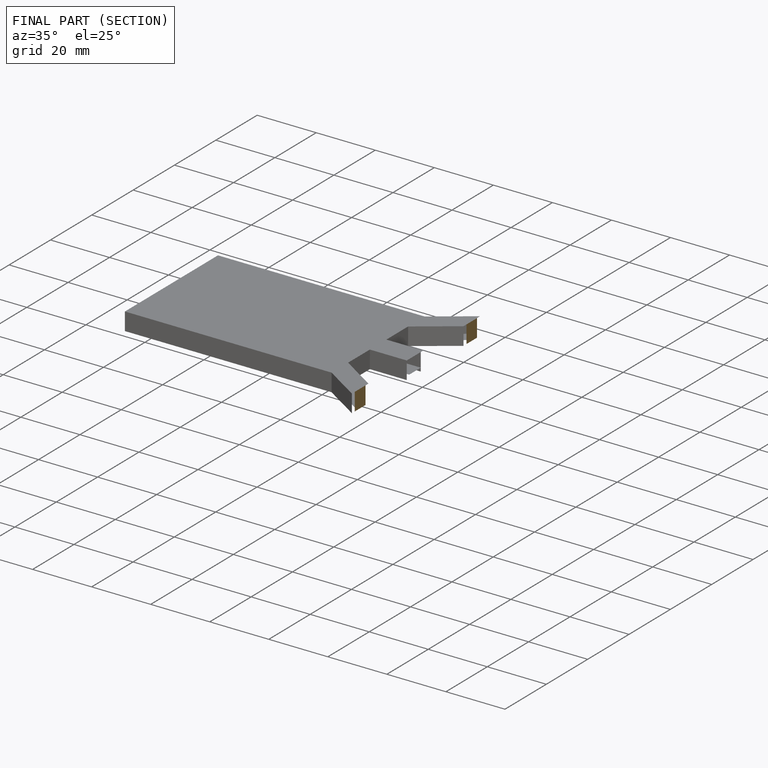
[diagram: finished part — half-section view (interior)]
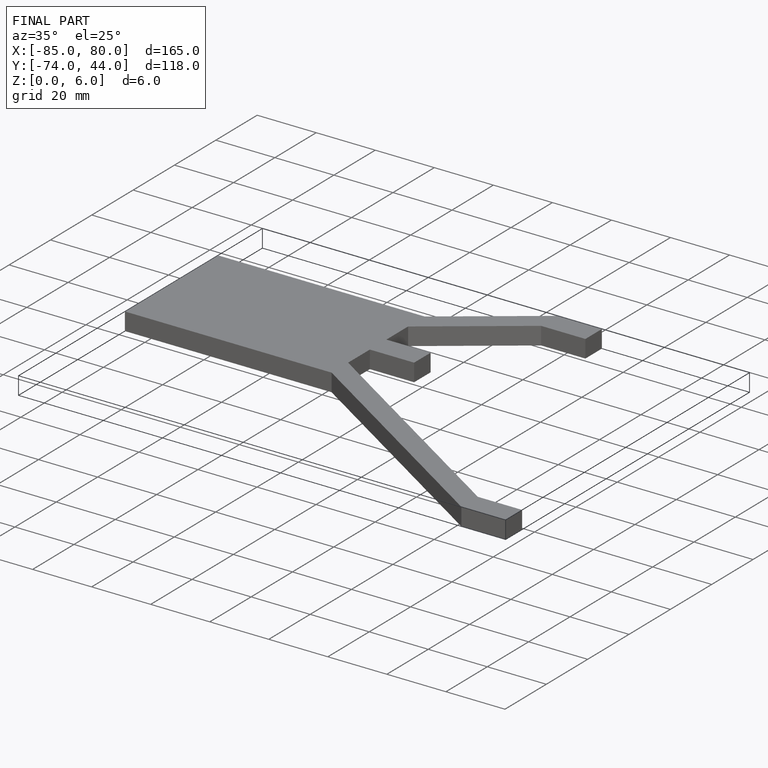
[diagram: finished part — iso view with bounding-box wireframe]
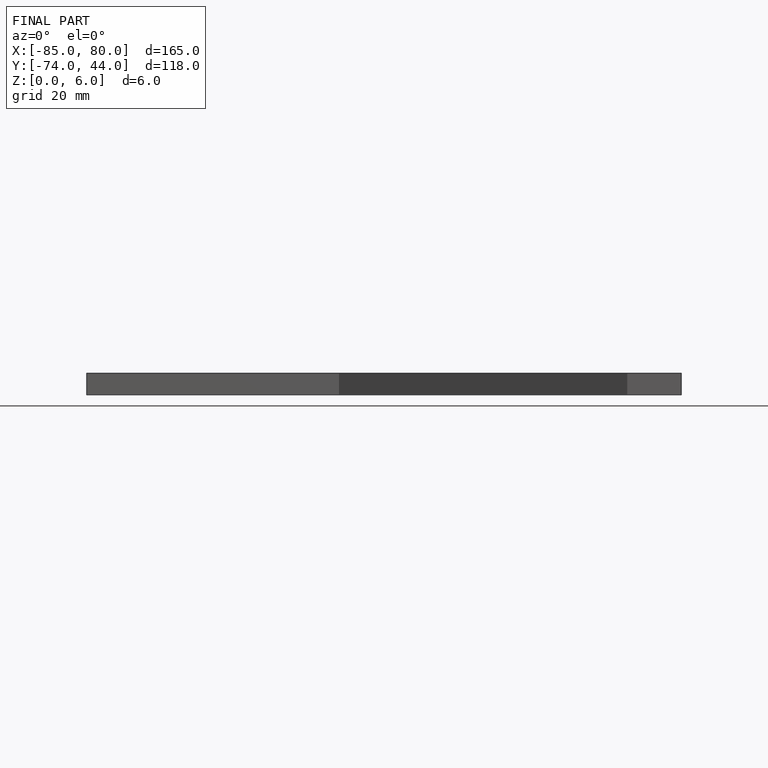
[diagram: finished part — front view with bounding-box wireframe]
